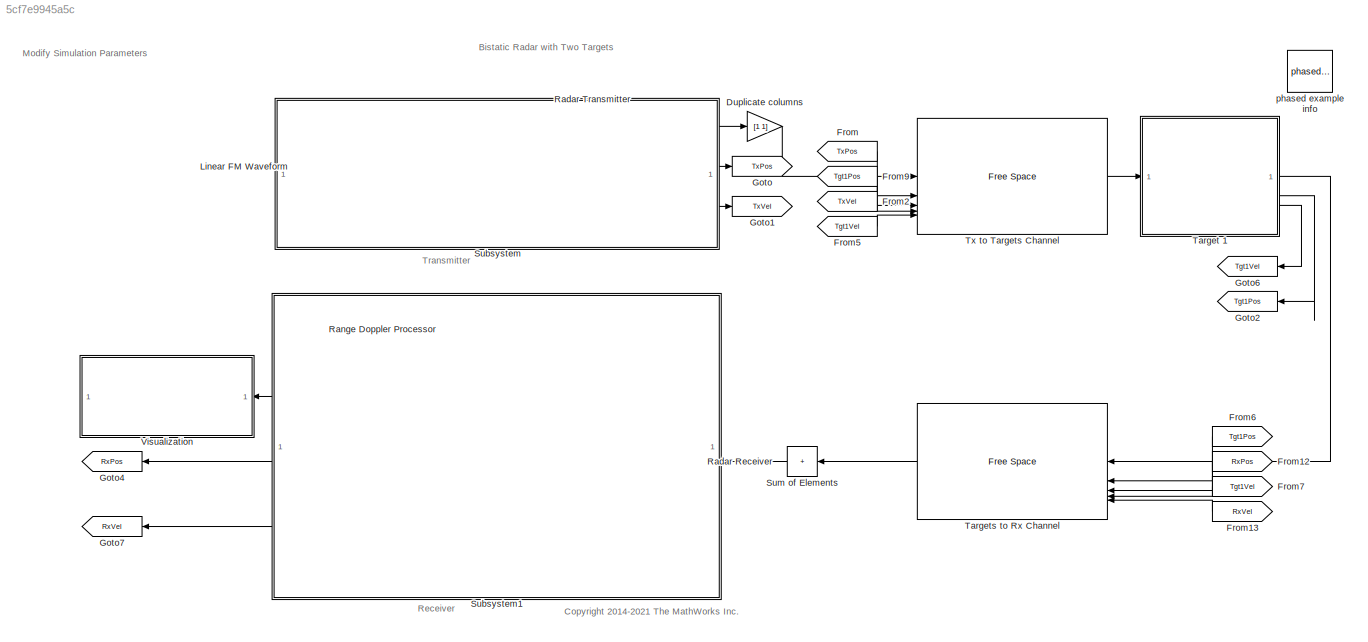
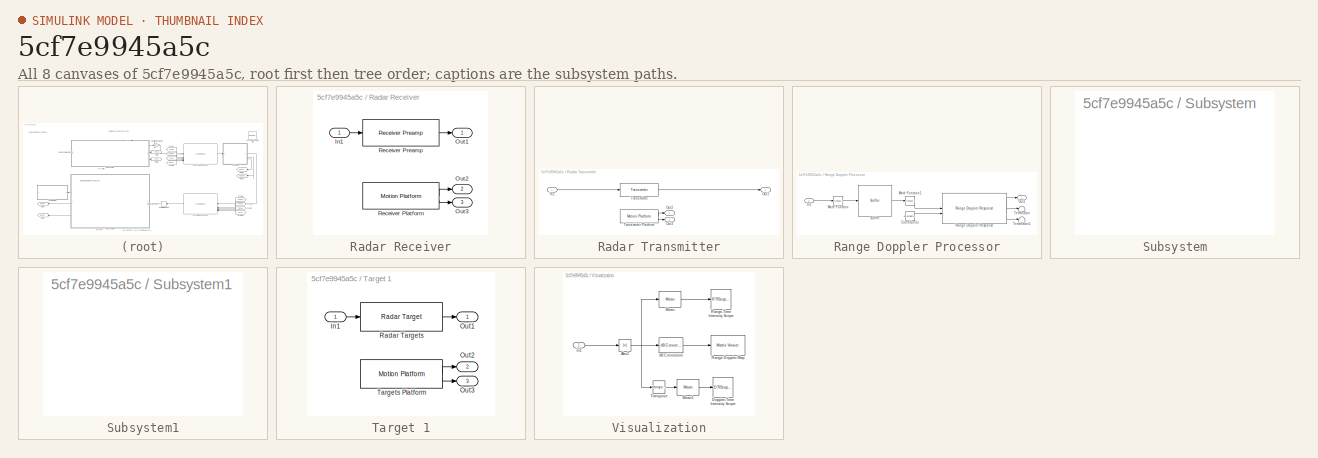
[diagram: thumbnail index - all 8 canvases of the model, root first then tree order]
MODEL slx_5cf7e9945a5c
KIND model
CONFIG AbsTol = auto
CONFIG EnableMultiTasking = on
CONFIG FixedStep = auto
CONFIG MaxStep = auto
CONFIG MinStep = auto
CONFIG PreLoadFcn = helperslexBistaticParam
CONFIG RelTol = 1e-3
CONFIG SampleTimeConstraint = Unconstrained
CONFIG SolverName = FixedStepDiscrete
CONFIG StartTime = 0.0
CONFIG StopTime = 0.16384
BLOCK [Gain] Duplicate columns
  Gain = [1 1]
  Multiplication = Matrix(u*K)
  NameLocation = top
BLOCK [From] From
  GotoTag = TxPos
BLOCK [From] From12
  GotoTag = RxPos
BLOCK [From] From13
  GotoTag = RxVel
BLOCK [From] From2
  GotoTag = TxVel
BLOCK [From] From5
  GotoTag = Tgt1Vel
BLOCK [From] From6
  GotoTag = Tgt1Pos
BLOCK [From] From7
  GotoTag = Tgt1Vel
BLOCK [From] From9
  GotoTag = Tgt1Pos
BLOCK [Goto] Goto
  GotoTag = TxPos
BLOCK [Goto] Goto1
  GotoTag = TxVel
BLOCK [Goto] Goto2
  GotoTag = Tgt1Pos
  NameLocation = top
BLOCK [Goto] Goto4
  GotoTag = RxPos
BLOCK [Goto] Goto6
  GotoTag = Tgt1Vel
  NameLocation = top
BLOCK [Goto] Goto7
  GotoTag = RxVel
BLOCK [Reference] Linear FM Waveform  REF=phasedwavlib/Linear FM Waveform
  SourceBlock = phasedwavlib/Linear FM Waveform
  SourceType = phased.internal.SimulinkLinearFMWaveform
BLOCK [SubSystem] Radar Receiver
BLOCK [Inport] Radar Receiver/In1
BLOCK [Outport] Radar Receiver/Out1
  VectorParamsAs1DForOutWhenUnconnected = off
BLOCK [Outport] Radar Receiver/Out2
  Port = 2
  VectorParamsAs1DForOutWhenUnconnected = off
BLOCK [Outport] Radar Receiver/Out3
  Port = 3
  VectorParamsAs1DForOutWhenUnconnected = off
BLOCK [Reference] Radar Receiver/Receiver Platform  REF=phasedenvlib/Motion Platform
  SourceBlock = phasedenvlib/Motion Platform
  SourceType = phased.internal.SimulinkPlatform
BLOCK [Reference] Radar Receiver/Receiver Preamp  REF=phasedtxrxlib/Receiver Preamp
  SourceBlock = phasedtxrxlib/Receiver Preamp
  SourceType = phased.internal.SimulinkReceiverPreamp
BLOCK [SubSystem] Radar Transmitter
BLOCK [Inport] Radar Transmitter/In1
BLOCK [Outport] Radar Transmitter/Out1
  VectorParamsAs1DForOutWhenUnconnected = off
BLOCK [Outport] Radar Transmitter/Out2
  Port = 2
  VectorParamsAs1DForOutWhenUnconnected = off
BLOCK [Outport] Radar Transmitter/Out3
  Port = 3
  VectorParamsAs1DForOutWhenUnconnected = off
BLOCK [Reference] Radar Transmitter/Transmitter  REF=phasedtxrxlib/Transmitter
  SourceBlock = phasedtxrxlib/Transmitter
  SourceType = phased.internal.SimulinkTransmitter
BLOCK [Reference] Radar Transmitter/Transmitter Platform  REF=phasedenvlib/Motion Platform
  SourceBlock = phasedenvlib/Motion Platform
  SourceType = phased.internal.SimulinkPlatform
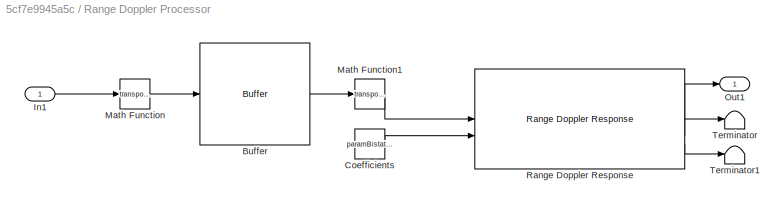
BLOCK [SubSystem] Range Doppler Processor
BLOCK [Buffer] Range Doppler Processor/Buffer
BLOCK [Constant] Range Doppler Processor/Coefficients
  Value = paramBistatic.coeff
BLOCK [Inport] Range Doppler Processor/In1
BLOCK [Math] Range Doppler Processor/Math Function
  Operator = transpose
  SignedPower = on
BLOCK [Math] Range Doppler Processor/Math Function1
  Operator = transpose
  SignedPower = on
BLOCK [Outport] Range Doppler Processor/Out1
  VectorParamsAs1DForOutWhenUnconnected = off
BLOCK [Reference] Range Doppler Processor/Range Doppler Response  REF=phaseddetectlib/Range Doppler Response
  SourceBlock = phaseddetectlib/Range Doppler Response
  SourceType = phased.RangeDopplerResponse
BLOCK [Terminator] Range Doppler Processor/Terminator
BLOCK [Terminator] Range Doppler Processor/Terminator1
BLOCK [SubSystem] Subsystem
BLOCK [SubSystem] Subsystem1
BLOCK [Sum] Sum of Elements
  CollapseDim = 2
  CollapseMode = Specified dimension
  IconShape = rectangular
  Inputs = +
  NameLocation = top
BLOCK [SubSystem] Target 1
BLOCK [Inport] Target 1/In1
BLOCK [Outport] Target 1/Out1
  VectorParamsAs1DForOutWhenUnconnected = off
BLOCK [Outport] Target 1/Out2
  Port = 2
  VectorParamsAs1DForOutWhenUnconnected = off
BLOCK [Outport] Target 1/Out3
  Port = 3
  VectorParamsAs1DForOutWhenUnconnected = off
BLOCK [Reference] Target 1/Radar Targets  REF=phasedenvlib/Radar Target
  SourceBlock = phasedenvlib/Radar Target
  SourceType = phased.RadarTarget
BLOCK [Reference] Target 1/Targets Platform  REF=phasedenvlib/Motion Platform
  SourceBlock = phasedenvlib/Motion Platform
  SourceType = phased.internal.SimulinkPlatform
BLOCK [Reference] Targets to Rx Channel  REF=phasedenvlib/Free Space
  SourceBlock = phasedenvlib/Free Space
  SourceType = phased.FreeSpace
BLOCK [Reference] Tx to Targets Channel  REF=phasedenvlib/Free Space
  SourceBlock = phasedenvlib/Free Space
  SourceType = phased.FreeSpace
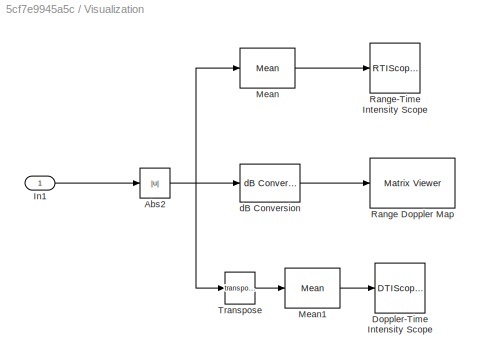
BLOCK [SubSystem] Visualization
BLOCK [Abs] Visualization/Abs2
  NameLocation = top
  SaturateOnIntegerOverflow = off
BLOCK [DTIScopeBlock] Visualization/Doppler-Time Intensity Scope
  DopplerOffset = paramBistatic.dopOff
  DopplerOutput = Speed
  DopplerResolution = paramBistatic.dopRes
  OperatingFrequency = paramBistatic.Fc
  PropagationSpeed = paramBistatic.pspeed
  ScopeFrameLocation = window
  TimeResolution = paramBistatic.timeRes
  TimeSpan = paramBistatic.timeSpan
  WasSavedAsWebScope = on
  WindowPosition = [775.000000,383.000000,393.000000,271.000000,]
BLOCK [Inport] Visualization/In1
BLOCK [Reference] Visualization/Mean  REF=dspstat3/Mean
  SourceBlock = dspstat3/Mean
  SourceType = Mean
  UserDataPersistent = on
BLOCK [Reference] Visualization/Mean1  REF=dspstat3/Mean
  SourceBlock = dspstat3/Mean
  SourceType = Mean
  UserDataPersistent = on
BLOCK [Reference] Visualization/Range Doppler Map  REF=dspobslib/Matrix
Viewer
  SourceBlock = dspobslib/Matrix\nViewer
  SourceType = Matrix Viewer
BLOCK [RTIScopeBlock] Visualization/Range-Time Intensity Scope
  RangeResolution = paramBistatic.rngRes
  ScopeFrameLocation = window
  TimeResolution = paramBistatic.timeRes
  TimeSpan = paramBistatic.timeSpan
  WasSavedAsWebScope = on
  WindowPosition = [775.000000,382.000000,391.000000,273.000000,]
BLOCK [Math] Visualization/Transpose
  Operator = transpose
BLOCK [Reference] Visualization/dB Conversion  REF=dspmathops/dB Conversion
  SourceBlock = dspmathops/dB Conversion
  SourceType = dB Conversion
BLOCK [Reference] phased example info  REF=phasedmisclib/phased example info
  SourceBlock = phasedmisclib/phased example info
ANNOTATION (root): Receiver
ANNOTATION (root): Transmitter
ANNOTATION (root): Bistatic Radar with Two Targets
ANNOTATION (root): <copyright redacted>
ANNOTATION (root): Modify Simulation Parameters
LINE Duplicate columns:1 -> Tx to Targets Channel:1
LINE From12:1 -> Targets to Rx Channel:3
LINE From13:1 -> Targets to Rx Channel:5
LINE From2:1 -> Tx to Targets Channel:4
LINE From5:1 -> Tx to Targets Channel:5
LINE From6:1 -> Targets to Rx Channel:2
LINE From7:1 -> Targets to Rx Channel:4
LINE From9:1 -> Tx to Targets Channel:3
LINE From:1 -> Tx to Targets Channel:2
LINE Linear FM Waveform:1 -> Radar Transmitter:1
LINE Radar Receiver/In1:1 -> Radar Receiver/Receiver Preamp:1
LINE Radar Receiver/Receiver Platform:1 -> Radar Receiver/Out2:1
LINE Radar Receiver/Receiver Platform:2 -> Radar Receiver/Out3:1
LINE Radar Receiver/Receiver Preamp:1 -> Radar Receiver/Out1:1
LINE Radar Receiver:1 -> Range Doppler Processor:1
LINE Radar Receiver:2 -> Goto4:1
LINE Radar Receiver:3 -> Goto7:1
LINE Radar Transmitter/In1:1 -> Radar Transmitter/Transmitter:1
LINE Radar Transmitter/Transmitter Platform:1 -> Radar Transmitter/Out2:1
LINE Radar Transmitter/Transmitter Platform:2 -> Radar Transmitter/Out3:1
LINE Radar Transmitter/Transmitter:1 -> Radar Transmitter/Out1:1
LINE Radar Transmitter:1 -> Duplicate columns:1
LINE Radar Transmitter:2 -> Goto:1
LINE Radar Transmitter:3 -> Goto1:1
LINE Range Doppler Processor/Buffer:1 -> Range Doppler Processor/Math Function1:1
LINE Range Doppler Processor/Coefficients:1 -> Range Doppler Processor/Range Doppler Response:2
LINE Range Doppler Processor/In1:1 -> Range Doppler Processor/Math Function:1
LINE Range Doppler Processor/Math Function1:1 -> Range Doppler Processor/Range Doppler Response:1
LINE Range Doppler Processor/Math Function:1 -> Range Doppler Processor/Buffer:1
LINE Range Doppler Processor/Range Doppler Response:1 -> Range Doppler Processor/Out1:1
LINE Range Doppler Processor/Range Doppler Response:2 -> Range Doppler Processor/Terminator:1
LINE Range Doppler Processor/Range Doppler Response:3 -> Range Doppler Processor/Terminator1:1
LINE Range Doppler Processor:1 -> Visualization:1
LINE Sum of Elements:1 -> Radar Receiver:1
LINE Target 1/In1:1 -> Target 1/Radar Targets:1
LINE Target 1/Radar Targets:1 -> Target 1/Out1:1
LINE Target 1/Targets Platform:1 -> Target 1/Out2:1
LINE Target 1/Targets Platform:2 -> Target 1/Out3:1
LINE Target 1:1 -> Targets to Rx Channel:1
LINE Target 1:2 -> Goto2:1
LINE Target 1:3 -> Goto6:1
LINE Targets to Rx Channel:1 -> Sum of Elements:1
LINE Tx to Targets Channel:1 -> Target 1:1
NET Visualization/Abs2:1 -> Visualization/Mean:1, Visualization/Transpose:1, Visualization/dB Conversion:1
LINE Visualization/In1:1 -> Visualization/Abs2:1
LINE Visualization/Mean1:1 -> Visualization/Doppler-Time Intensity Scope:1
LINE Visualization/Mean:1 -> Visualization/Range-Time Intensity Scope:1
LINE Visualization/Transpose:1 -> Visualization/Mean1:1
LINE Visualization/dB Conversion:1 -> Visualization/Range Doppler Map:1
note: NET lines group one-source signal fan-out (src -> all destinations, sorted); 1:1 wires keep LINE
